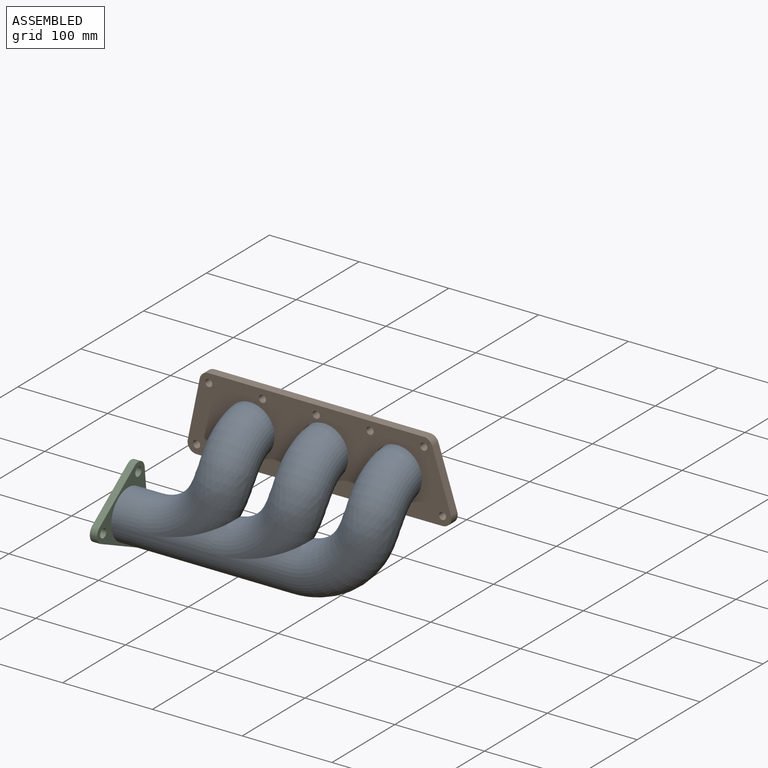
[diagram: assembled view]
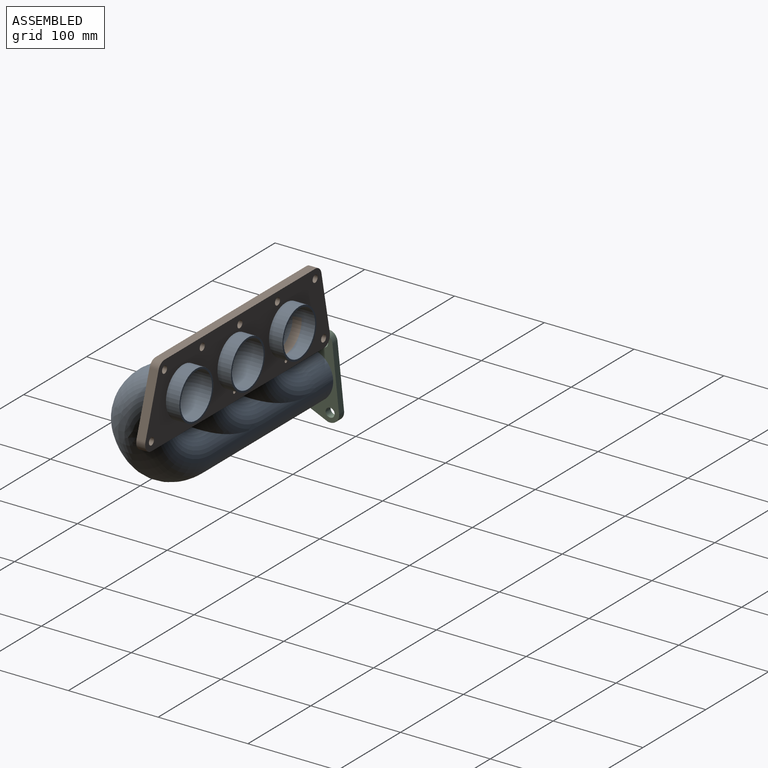
[diagram: assembled view, second angle]
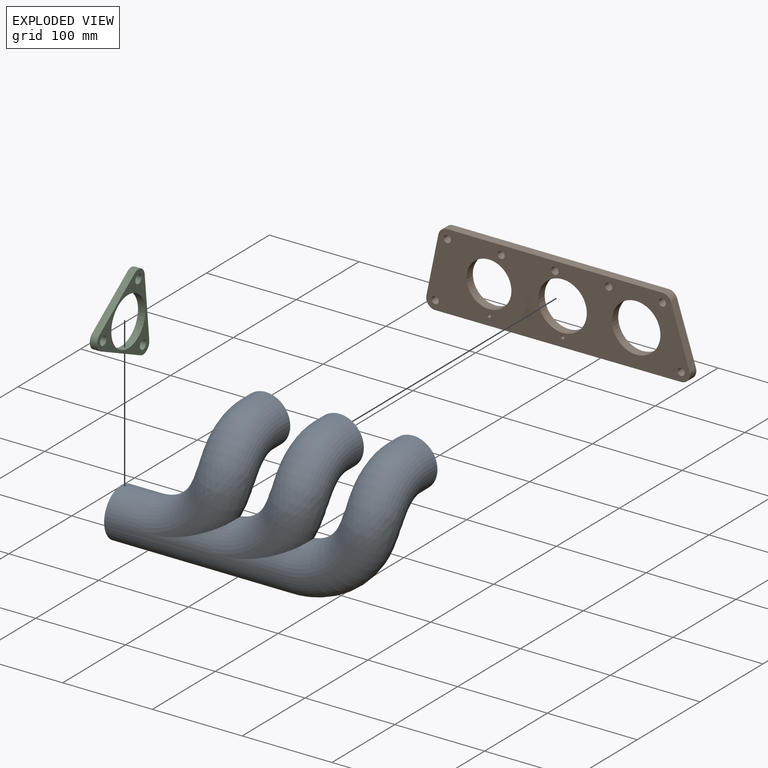
[diagram: exploded view]
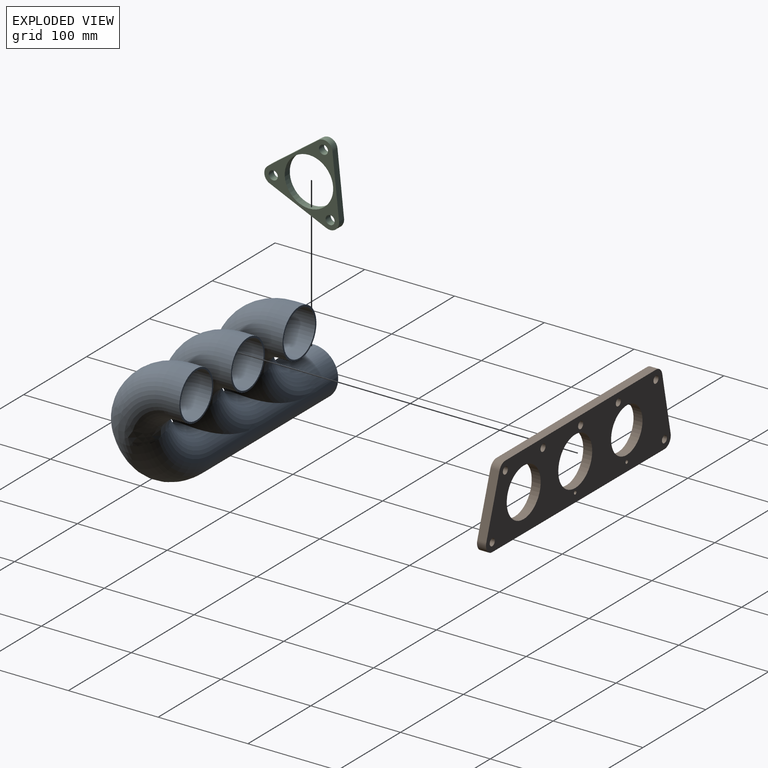
[diagram: exploded view, second angle]
ASSEMBLY  parts=3 mates=2
PART A: 27 faces, bbox 307.4x92x169.2 mm
  f0: plane 54x54mm, normal (0,1,0), area 326.7mm2, adj f5,f20
  f1: cylinder r=27mm len=200mm, axis (1,0,0), area 23967.4mm2, adj f2,f7,f14,f16
  f2: torus R=80mm, axis (0,-1,0), area 15881.3mm2, adj f1,f3,f14
  f3: bspline ~57.71x57.44mm, area 5582.6mm2, adj f2,f4
  f4: torus R=50mm, axis (-1,0,0), area 7865.6mm2, adj f3,f5
  f5: cylinder r=27mm len=54mm, axis (0,1,0), area 2544.7mm2, adj f0,f4
  f6: plane 54x54mm, normal (0,1,0), area 326.7mm2, adj f10,f23
  f7: torus R=80mm, axis (0,-1,0), area 9192.7mm2, adj f1,f8,f14
  f8: bspline ~57.71x57.44mm, area 5582.6mm2, adj f7,f9
  f9: torus R=50mm, axis (-1,0,0), area 7865.6mm2, adj f8,f10
  f10: cylinder r=27mm len=54mm, axis (0,1,0), area 2544.7mm2, adj f6,f9
  f11: cylinder r=27mm len=54mm, axis (0,1,0), area 2544.7mm2, adj f12,f15
  f12: torus R=50mm, axis (-1,0,0), area 7865.6mm2, adj f11,f13
  f13: bspline ~57.71x57.44mm, area 5582.6mm2, adj f12,f14
  f14: torus R=80mm, axis (0,-1,0), area 8972.6mm2, adj f1,f2,f7,f13
  f15: plane 54x54mm, normal (0,1,0), area 326.7mm2, adj f11,f24
  f16: plane 54x54mm, normal (-1,0,0), area 326.7mm2, adj f1,f17
  f17: cylinder r=25mm len=200mm, axis (1,0,0), area 22628mm2, adj f16,f18,f21,f26
  f18: torus R=80mm, axis (0,-1,0), area 14795.6mm2, adj f17,f26
  f19: torus R=50mm, axis (-1,0,0), area 7283mm2, adj f20
  f20: cylinder r=25mm len=50mm, axis (0,1,0), area 2356.2mm2, adj f0,f19
  f21: torus R=80mm, axis (0,-1,0), area 8801.4mm2, adj f17,f26
  f22: torus R=50mm, axis (-1,0,0), area 7283mm2, adj f23
  f23: cylinder r=25mm len=50mm, axis (0,1,0), area 2356.2mm2, adj f6,f22
  f24: cylinder r=25mm len=50mm, axis (0,1,0), area 2356.2mm2, adj f15,f25
  f25: torus R=50mm, axis (-1,0,0), area 7283mm2, adj f24
  f26: torus R=80mm, axis (0,-1,0), area 8688.3mm2, adj f17,f18,f21
PART B: 22 faces, bbox 294x10x85.2 mm
  f0: plane 64.26x20.87mm, normal (0.95,0,0.31), area 675.7mm2, adj f7,f8,f9,f12
  f1: plane 273.99x10mm, normal (0,0,-1), area 2739.9mm2, adj f7,f8,f9,f10
  f2: plane 65.18x13.34mm, normal (-0.98,0,0.2), area 665.3mm2, adj f7,f8,f10,f11
  f3: cylinder r=27mm len=54mm, axis (0,-1,0), area 1696.5mm2, adj f7,f8
  f4: plane 239.78x10mm, normal (0,0,1), area 2397.8mm2, adj f7,f8,f11,f12
  f5: cylinder r=27mm len=54mm, axis (0,-1,0), area 1696.5mm2, adj f7,f8
  f6: cylinder r=25mm len=50mm, axis (0,-1,0), area 1570.8mm2, adj f7,f8
  f7: plane 293.99x85.18mm, normal (0,1,0), area 16499.8mm2, adj f0,f1,f2,f3,f4,f5,f6,f9
  f8: plane 293.99x85.18mm, normal (0,-1,0), area 16499.8mm2, adj f0,f1,f2,f3,f4,f5,f6,f9
  f9: cylinder r=10mm len=13.09mm, axis (0,1,0), area 188.1mm2, adj f0,f1,f7,f8
  f10: cylinder r=10mm len=12.01mm, axis (0,-1,0), area 177.6mm2, adj f1,f2,f7,f8
  f11: cylinder r=10mm len=10mm, axis (0,1,0), area 136.9mm2, adj f2,f4,f7,f8
  f12: cylinder r=10mm len=10mm, axis (0,-1,0), area 125.7mm2, adj f0,f4,f7,f8
  f13: cylinder r=4mm len=10mm, axis (0,1,0), area 251.3mm2, adj f7,f8
  f14: cylinder r=4mm len=10mm, axis (0,1,0), area 251.3mm2, adj f7,f8
  f15: cylinder r=4mm len=10mm, axis (0,1,0), area 251.3mm2, adj f7,f8
  f16: cylinder r=4mm len=10mm, axis (0,1,0), area 251.3mm2, adj f7,f8
  f17: cylinder r=4mm len=10mm, axis (0,1,0), area 251.3mm2, adj f7,f8
  f18: cylinder r=2mm len=10mm, axis (0,1,0), area 125.7mm2, adj f7,f8
  f19: cylinder r=2mm len=10mm, axis (0,1,0), area 125.7mm2, adj f7,f8
  f20: cylinder r=4mm len=10mm, axis (0,1,0), area 251.3mm2, adj f7,f8
  f21: cylinder r=4mm len=10mm, axis (0,1,0), area 251.3mm2, adj f7,f8
PART C: 12 faces, bbox 8x83.3x88.9 mm
  f0: plane 68.89x8mm, normal (0,0.99,0.11), area 554.3mm2, adj f4,f5,f6,f8
  f1: plane 55.99x40.8mm, normal (0,-0.59,0.81), area 554.3mm2, adj f4,f5,f6,f7
  f2: plane 63.33x28.09mm, normal (0,-0.41,-0.91), area 554.3mm2, adj f4,f5,f7,f8
  f3: cylinder r=27mm len=54mm, axis (1,0,0), area 1357.2mm2, adj f4,f5
  f4: plane 88.89x83.33mm, normal (-1,0,0), area 1945.2mm2, adj f0,f1,f2,f3,f6,f7,f8,f9
  f5: plane 88.89x83.33mm, normal (1,0,0), area 1945.2mm2, adj f0,f1,f2,f3,f6,f7,f8,f9
  f6: cylinder r=10mm len=15.83mm, axis (1,0,0), area 167.6mm2, adj f0,f1,f4,f5
  f7: cylinder r=10mm len=17.22mm, axis (1,0,0), area 167.6mm2, adj f1,f2,f4,f5
  f8: cylinder r=10mm len=14.05mm, axis (1,0,0), area 167.6mm2, adj f0,f2,f4,f5
  f9: cylinder r=5mm len=10mm, axis (-1,0,0), area 251.3mm2, adj f4,f5
  f10: cylinder r=5mm len=10mm, axis (-1,0,0), area 251.3mm2, adj f4,f5
  f11: cylinder r=5mm len=10mm, axis (-1,0,0), area 251.3mm2, adj f4,f5
PLACE A t=(-8.36,47.68,-83.95)mm
PLACE B t=(-8.36,22.68,-83.95)mm
PLACE C t=(-0.36,47.68,-83.95)mm
MATE ball C.f3 <-> A.f1  axis (-1,0,0) through (-8.36,47.68,-83.95)mm
MATE ball B.f5 <-> A.f11  axis (0,1,0) through (189.64,97.68,16.05)mm
